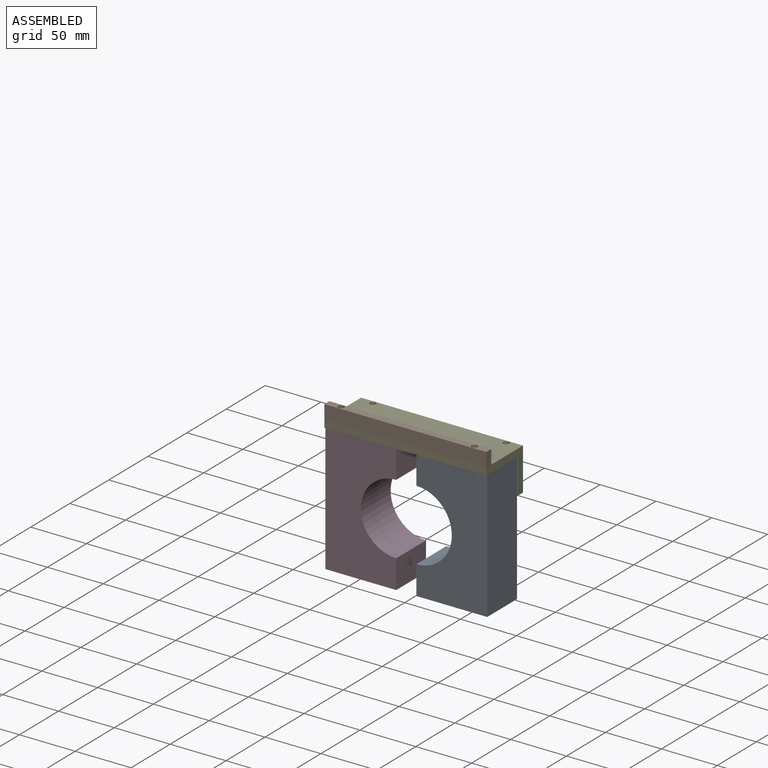
[diagram: assembled view]
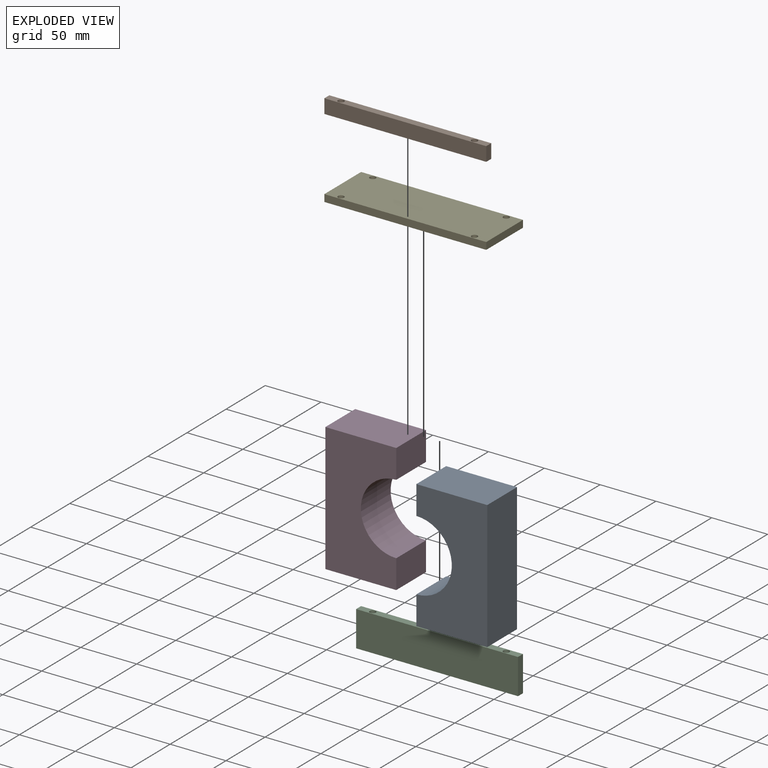
[diagram: exploded view]
GUIDED TOUR — MATED ASSEMBLY (Onshape document 06776807b991c70d6a0b1777, AutoMate assembly 06776807b991c70d6a0b1777_375a27e0dccaaed1980255c1_b34d99c59157cb298fc82749_default)

This assembly has 5 components, labeled P0..P4 below (a component is one placed occurrence of a part; the same part can appear more than once), held together by 6 mates. A mate is a constraint between two components; its type names the relative motion it leaves free:
  CYLINDRICAL — leaves both rotation about and translation along the listed axis free,
  PLANAR — leaves sliding in the plane through the listed point (normal = the listed direction) and rotation about that normal free.
Axis/direction vectors are unit vectors and 'through' points are millimeter coordinates, both in the assembly's world frame.

MATES
  1. CYLINDRICAL "Cylindrical 2": P1 <-> P4, axis (0.000, 0.000, -1.000) through (-117.22, -28.21, -141.79) mm
  2. PLANAR "Planar 2": P4 <-> P0, direction (0.000, 0.000, -1.000) through (-57.42, -7.89, -148.14) mm
  3. CYLINDRICAL "Cylindrical 1": P4 <-> P2, axis (0.000, 0.000, 1.000) through (2.38, 12.43, -141.79) mm
  4. PLANAR "Planar 3": P3 <-> P4, direction (-1.000, 0.000, 0.000) through (-129.92, -11.04, -148.14) mm
  5. PLANAR "Planar 1": P2 <-> P4, direction (0.000, 0.000, 1.000) through (-57.42, 12.43, -148.14) mm
  6. CYLINDRICAL "Cylindrical 3": P4 <-> P1, axis (0.000, 0.000, 1.000) through (-117.22, -28.21, -141.79) mm

ASSEMBLY ORDER
  1. P3 — the base component [order verified]
  2. P0 [order verified]
  3. P2 [order verified]
  4. P4 [order verified]
  5. P1 [order verified]
Order-tag legend:
  [order verified] — this step's position reverses a verified removal order: the component was checked to insert without passing through the ones already placed.

Of the 5 components, 3 carry the full construction recipe — the FeatureScript program that regenerates the part's solid from scratch; the rest are supplied as boundary geometry only.
Each toured component is shown spotlighted twice — in the assembled view, then in the exploded view, where a leader line traces a displaced component back to its assembled socket (saturated green if recipe-attached, orange if geometry-only; every other component desaturated gray) — followed by its recipe or geometry summary and the mates that hold it.
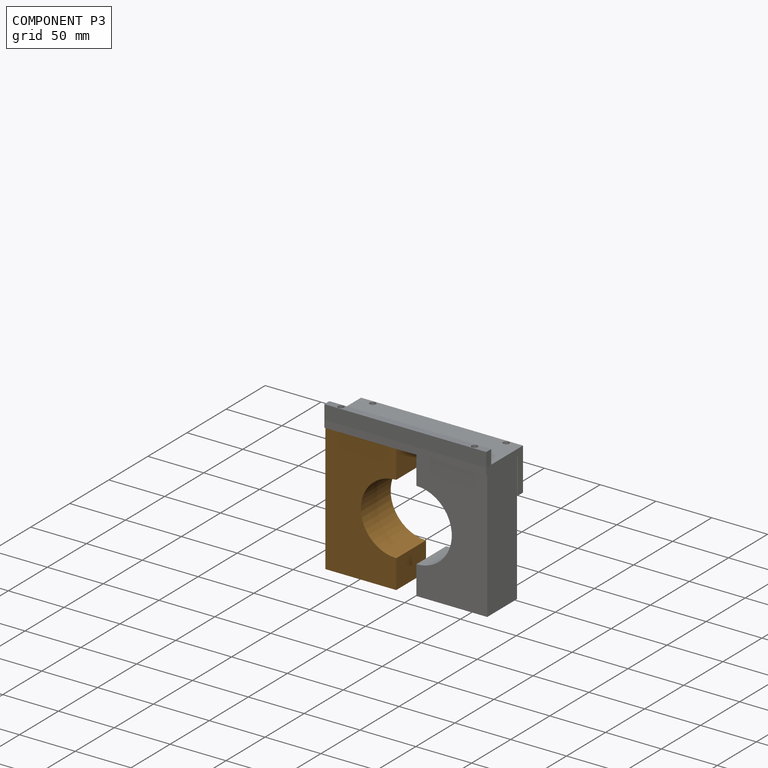
[diagram: component P3 — assembled]
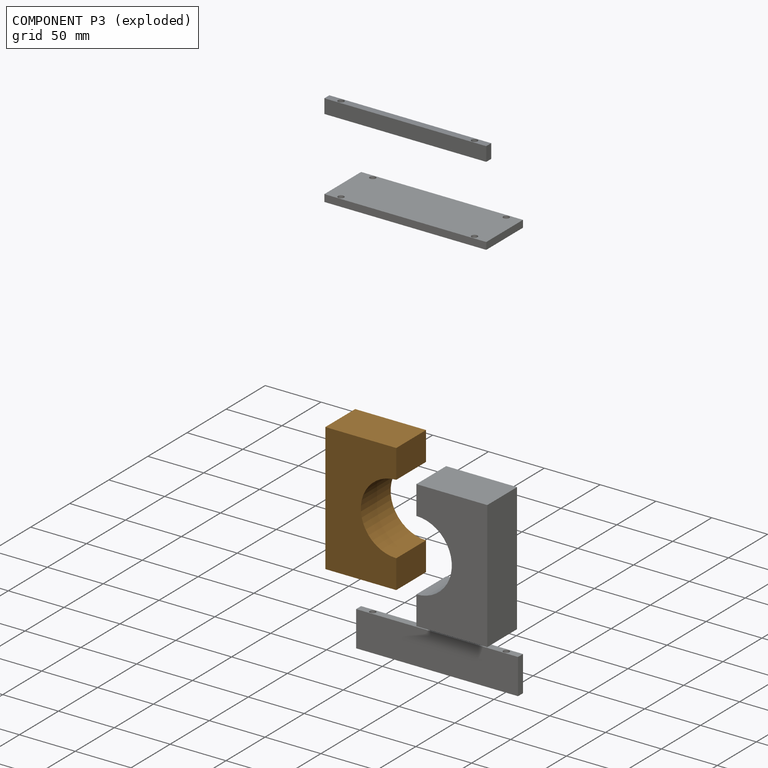
[diagram: component P3 — exploded]
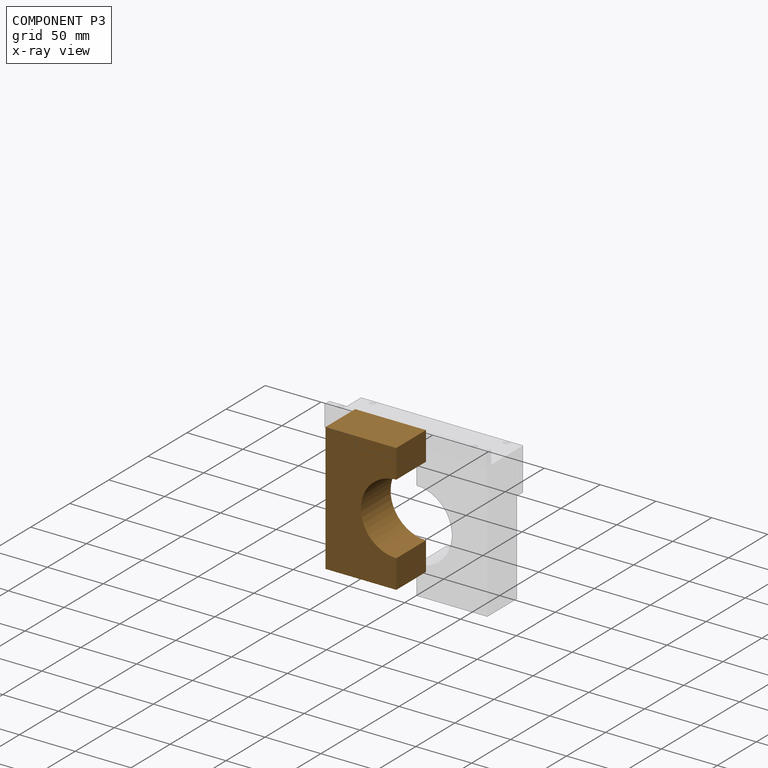
[diagram: component P3 — x-ray view]
COMPONENT P3 — geometry summary (no construction recipe available for this part):
  bounding box: 115.0 x 63.5 x 38.1 mm
  B-rep topology: 1 solid, 8 faces, 36 edges
  volume: 217895 mm^3 (78% of its bounding box)
  symmetry: 2-fold rotationally symmetric about the x axis; mirror-symmetric across its y mid-plane, z mid-plane
Held by: PLANAR mate "Planar 3" to P4.
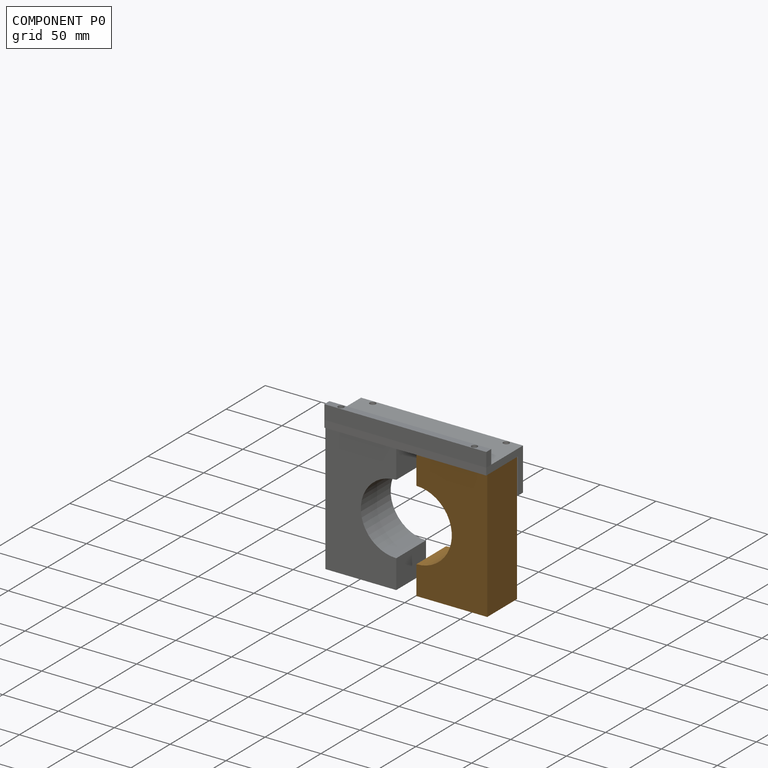
[diagram: component P0 — assembled]
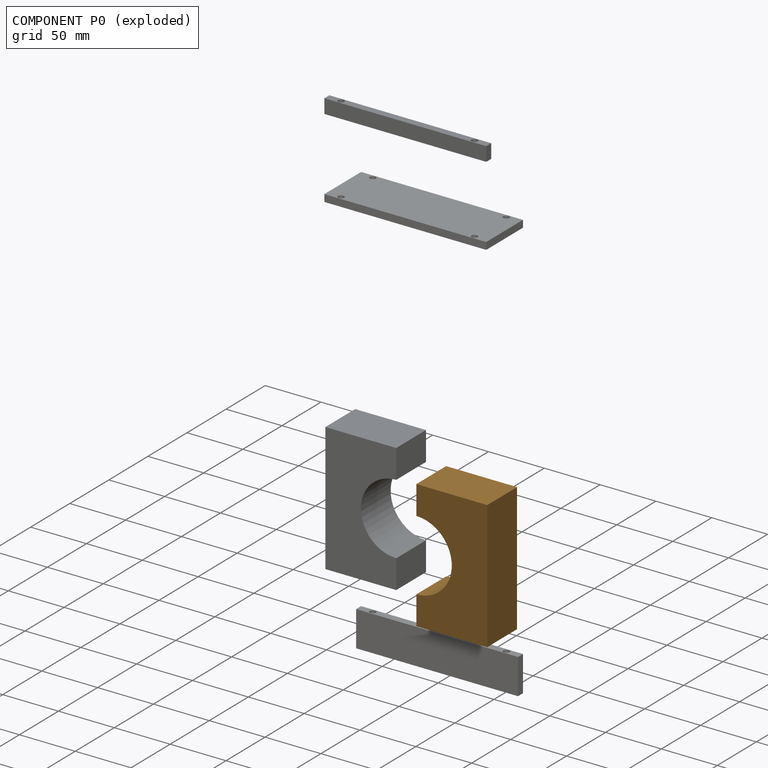
[diagram: component P0 — exploded]
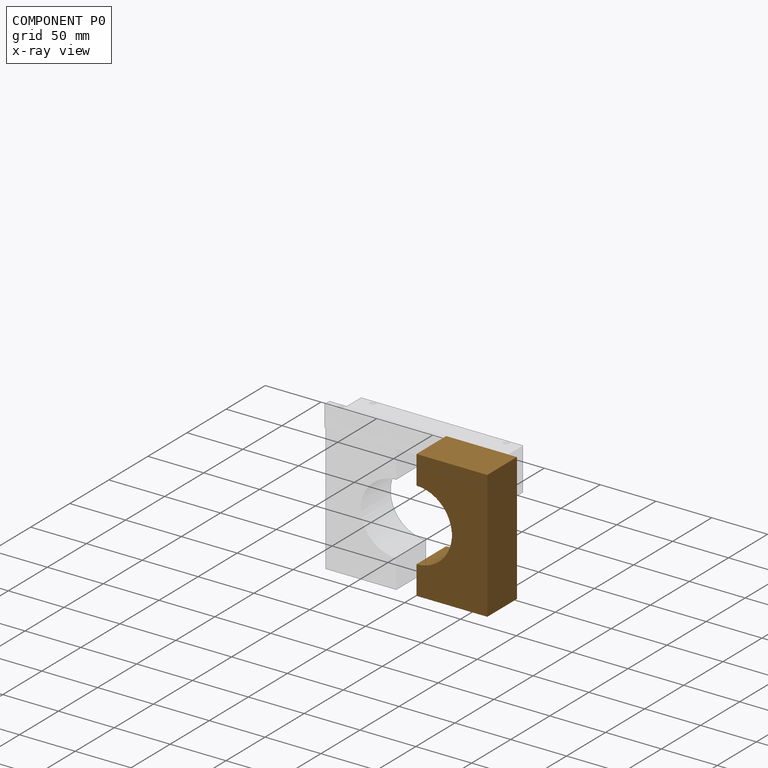
[diagram: component P0 — x-ray view]
COMPONENT P0 — geometry summary (no construction recipe available for this part):
  bounding box: 115.0 x 63.5 x 38.1 mm
  B-rep topology: 1 solid, 8 faces, 36 edges
  volume: 217895 mm^3 (78% of its bounding box)
  symmetry: 2-fold rotationally symmetric about the x axis; mirror-symmetric across its y mid-plane, z mid-plane
Held by: PLANAR mate "Planar 2" to P4.
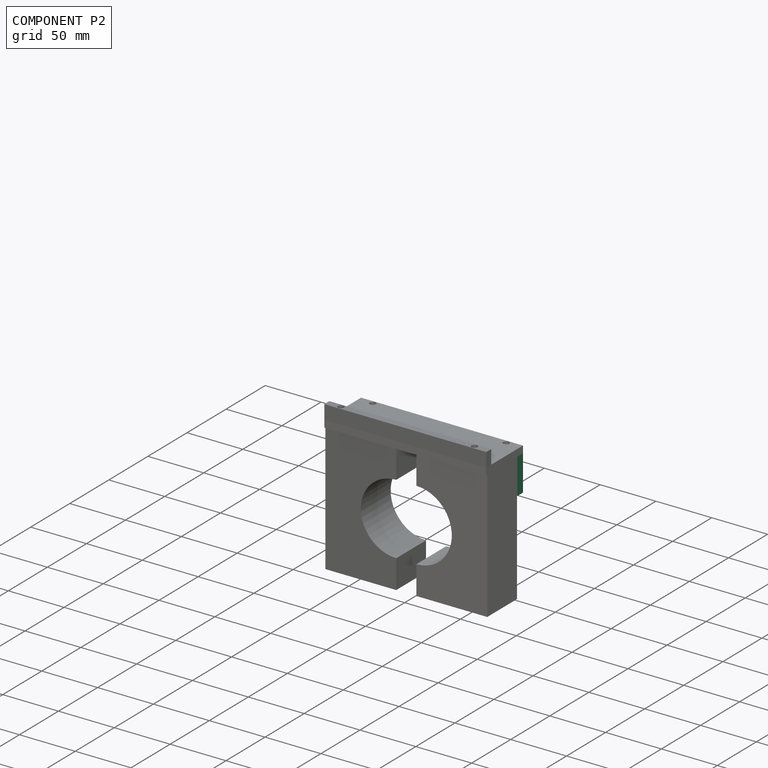
[diagram: component P2 — assembled]
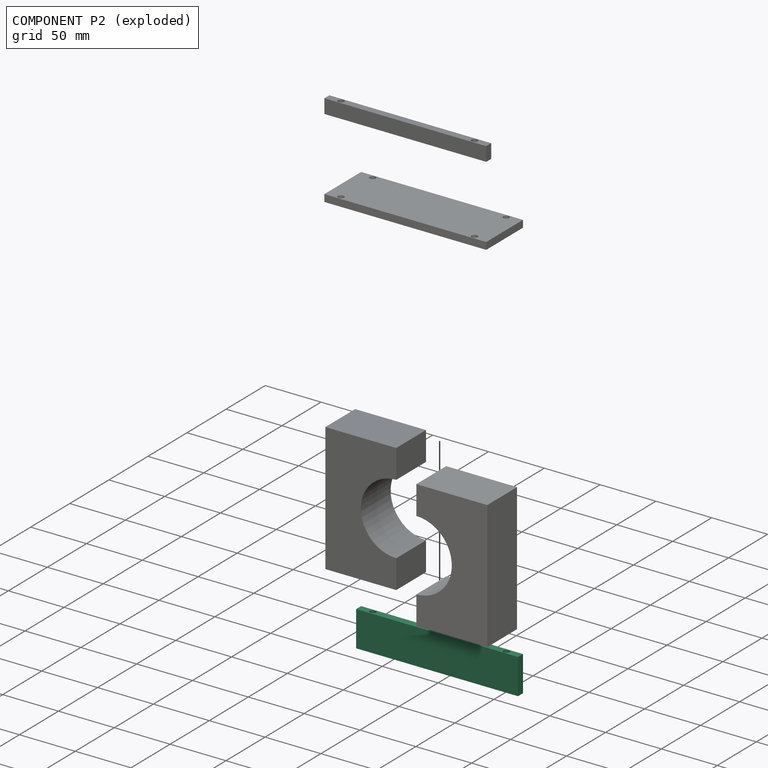
[diagram: component P2 — exploded]
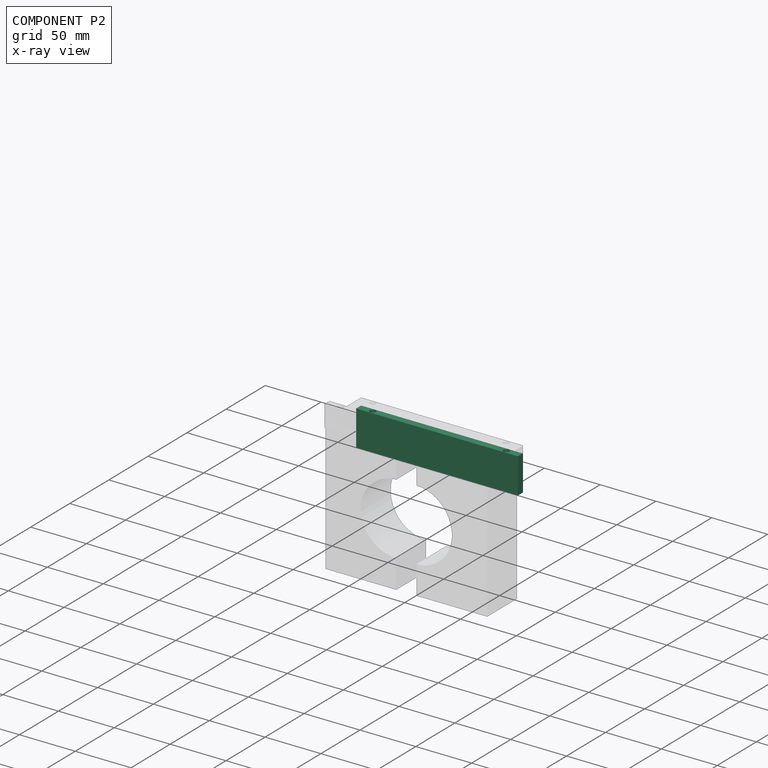
[diagram: component P2 — x-ray view]
COMPONENT P2 — recipe-attached (CADFS 00235846, mesh-verified: the recipe's output STEP matches this component's geometry to below the mesh-comparison resolution (tessellation chordal tolerance ~0.223 mm)).
Held by: CYLINDRICAL mate "Cylindrical 1" to P4; PLANAR mate "Planar 1" to P4.
Construction recipe (FeatureScript — the CAD program that rebuilds this solid; sketch coordinates are in the units given by the * unit suffixes, e.g. mm):

FeatureScript 1511;
import(path : "onshape/std/geometry.fs", version : "1511.0");
import(path : "onshape/std/common.fs", version : "1511.0");
const mm = millimeter;
const VERTEX = EntityType.VERTEX;
const EDGE = EntityType.EDGE;
const FACE = EntityType.FACE;
const BODY = EntityType.BODY;
function v(x, y){return vector(x, y);}
function OD(order){return orderDisambiguation(order);}
function OSD(set){return originalSetDisambiguation(set);}
function TD(topology){return topologyDisambiguation(topology);}
function TDD(query){return trueDependencyDisambiguation(query);}
function sQuery(a, b, c) {return sketchEntityQuery(a, b, c);}

annotation { "Feature Type Name" : "Feature", "Feature Type Description" : "" }
export const myFeature = defineFeature(function(context is Context, id is Id, definition is map)
    precondition{}
    {
        {
            var Q0;
            Q0=qCreatedBy(makeId("Front.planeOp"),FACE);
            var sketch = newSketch(context, id + "F0", { "sketchPlane" : qUnion([Q0])});
            skLineSegment(sketch, "E0.bottom", {"start": v(0, 0) * mm, "end": v(145, 0) * mm});
            skLineSegment(sketch, "E0.top", {"start": v(0, 31.75) * mm, "end": v(145, 31.75) * mm});
            skLineSegment(sketch, "E0.left", {"start": v(0, 0) * mm, "end": v(0, 31.75) * mm});
            skLineSegment(sketch, "E0.right", {"start": v(145, 0) * mm, "end": v(145, 31.75) * mm});
            skSolve(sketch);
        }
        {
            var Q0;
            Q0=makeQuery(id+"F0.imprint","IMPRINT",FACE,{"disambiguationData":[TD([[makeQuery(id+"F0.imprint","IMPRINT",EDGE,{"derivedFrom":sQuery(id+"F0.wireOp",EDGE,"E0.bottom")}),1.0]])]});
            extrude(context, id + "F1", {"entities" : qUnion([Q0]), "depth" : 6.35 * mm});
        }
        {
            var Q0;
            Q0=makeQuery(id+"F1.opExtrude","SWEPT_FACE",FACE,{"disambiguationData":[OSD([sQuery(id+"F0.wireOp",EDGE,"E0.top")])]});
            var sketch = newSketch(context, id + "F2", { "sketchPlane" : qUnion([Q0])});
            skPoint(sketch, "E1", {"position": v(12.7, -3.18) * mm});
            skPoint(sketch, "E2", {"position": v(132.3, -3.17) * mm});
            skSolve(sketch);
        }
        {
            var Q0;
            Q0=sQuery(id+"F2.wireOp",VERTEX,"E1");
            var Q1;
            Q1=sQuery(id+"F2.wireOp",VERTEX,"E2");
            var Q2;
            Q2=makeQuery(id+"F1.opExtrude","SWEPT_BODY",BODY,{"disambiguationData":[OSD([sQuery(id+"F0.wireOp",EDGE,"E0.bottom"),sQuery(id+"F0.wireOp",EDGE,"E0.top"),sQuery(id+"F0.wireOp",EDGE,"E0.left"),sQuery(id+"F0.wireOp",EDGE,"E0.right")])]});
            hole(context, id + "F3", {"style" : HoleStyle.SIMPLE, "endStyle" : HoleEndStyle.BLIND, "holeDiameter" : 5.33 * mm, "holeDepth" : 12.7 * mm, "locations" : qUnion([Q0, Q1]), "scope" : qUnion([Q2])});
        }
    });
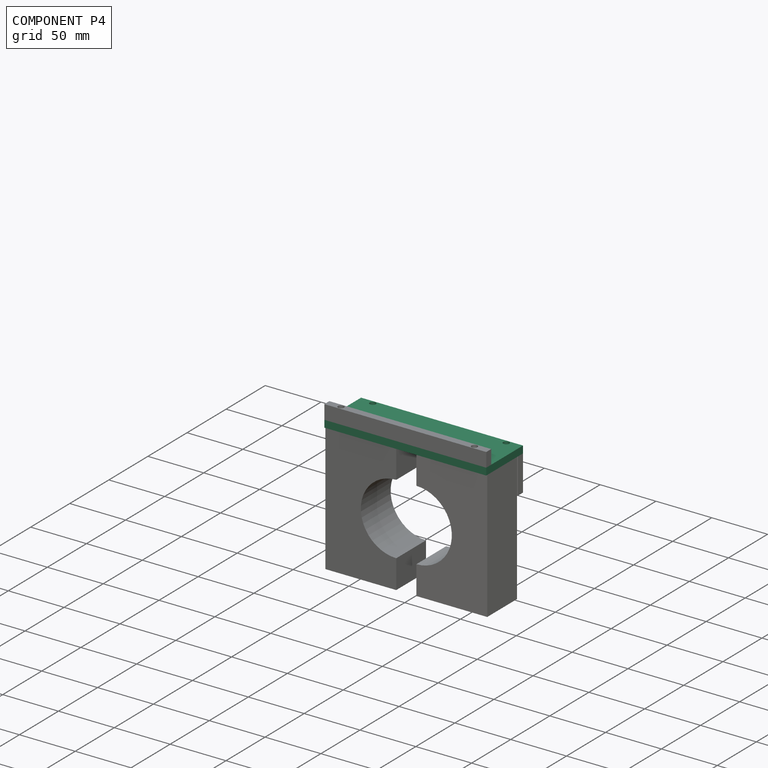
[diagram: component P4 — assembled]
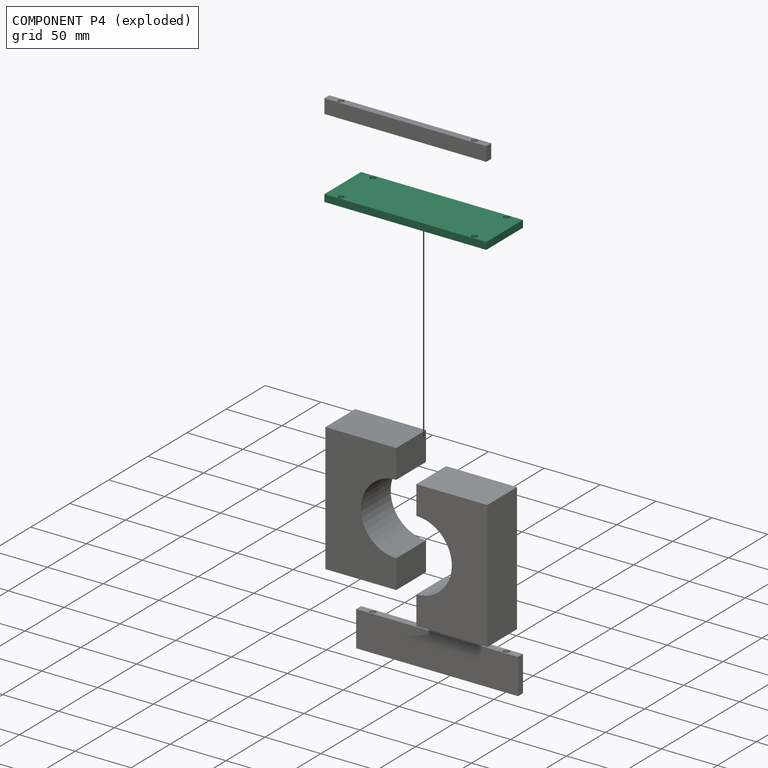
[diagram: component P4 — exploded]
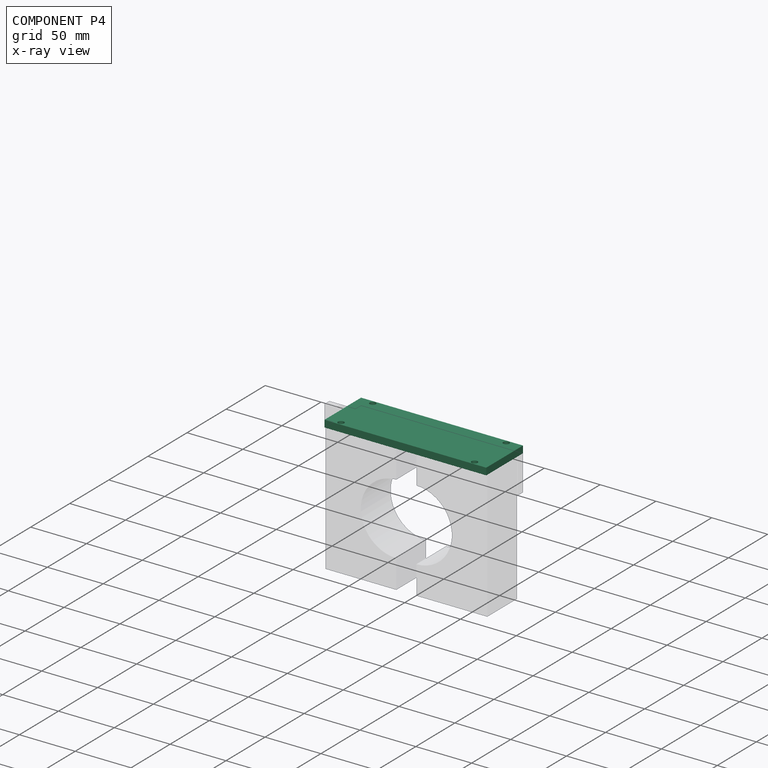
[diagram: component P4 — x-ray view]
COMPONENT P4 — recipe-attached (CADFS 00235847, mesh-verified: the recipe's output STEP matches this component's geometry to below the mesh-comparison resolution (tessellation chordal tolerance ~0.229 mm)).
Held by: CYLINDRICAL mate "Cylindrical 2" to P1; PLANAR mate "Planar 2" to P0; CYLINDRICAL mate "Cylindrical 1" to P2; PLANAR mate "Planar 3" to P3; PLANAR mate "Planar 1" to P2; CYLINDRICAL mate "Cylindrical 3" to P1.
Construction recipe (FeatureScript — the CAD program that rebuilds this solid; sketch coordinates are in the units given by the * unit suffixes, e.g. mm):

FeatureScript 1511;
import(path : "onshape/std/geometry.fs", version : "1511.0");
import(path : "onshape/std/common.fs", version : "1511.0");
const mm = millimeter;
const VERTEX = EntityType.VERTEX;
const EDGE = EntityType.EDGE;
const FACE = EntityType.FACE;
const BODY = EntityType.BODY;
function v(x, y){return vector(x, y);}
function OD(order){return orderDisambiguation(order);}
function OSD(set){return originalSetDisambiguation(set);}
function TD(topology){return topologyDisambiguation(topology);}
function TDD(query){return trueDependencyDisambiguation(query);}
function sQuery(a, b, c) {return sketchEntityQuery(a, b, c);}

annotation { "Feature Type Name" : "Feature", "Feature Type Description" : "" }
export const myFeature = defineFeature(function(context is Context, id is Id, definition is map)
    precondition{}
    {
        {
            var Q0;
            Q0=qCreatedBy(makeId("Front.planeOp"),FACE);
            var sketch = newSketch(context, id + "F0", { "sketchPlane" : qUnion([Q0])});
            skLineSegment(sketch, "E0.bottom", {"start": v(0, 0) * mm, "end": v(145, 0) * mm});
            skLineSegment(sketch, "E0.top", {"start": v(0, 47) * mm, "end": v(145, 47) * mm});
            skLineSegment(sketch, "E0.left", {"start": v(0, 0) * mm, "end": v(0, 47) * mm});
            skLineSegment(sketch, "E0.right", {"start": v(145, 0) * mm, "end": v(145, 47) * mm});
            skSolve(sketch);
        }
        {
            var Q0;
            Q0=makeQuery(id+"F0.imprint","IMPRINT",FACE,{"disambiguationData":[TD([[makeQuery(id+"F0.imprint","IMPRINT",EDGE,{"derivedFrom":sQuery(id+"F0.wireOp",EDGE,"E0.bottom")}),1.0]])]});
            extrude(context, id + "F1", {"entities" : qUnion([Q0]), "depth" : 6.35 * mm});
        }
        {
            var Q0;
            Q0=makeQuery(id+"F1.opExtrude","CAP_FACE",FACE,{"disambiguationData":[OSD([sQuery(id+"F0.wireOp",EDGE,"E0.bottom"),sQuery(id+"F0.wireOp",EDGE,"E0.top"),sQuery(id+"F0.wireOp",EDGE,"E0.left"),sQuery(id+"F0.wireOp",EDGE,"E0.right")])],"isStart":false});
            var sketch = newSketch(context, id + "F2", { "sketchPlane" : qUnion([Q0])});
            skPoint(sketch, "E1", {"position": v(12.7, 43.82) * mm});
            skPoint(sketch, "E2", {"position": v(132.3, 43.82) * mm});
            skPoint(sketch, "E3", {"position": v(12.7, 3.18) * mm});
            skPoint(sketch, "E4", {"position": v(132.3, 3.18) * mm});
            skSolve(sketch);
        }
        {
            var Q0;
            Q0=sQuery(id+"F2.wireOp",VERTEX,"E1");
            var Q1;
            Q1=sQuery(id+"F2.wireOp",VERTEX,"E2");
            var Q2;
            Q2=sQuery(id+"F2.wireOp",VERTEX,"E3");
            var Q3;
            Q3=sQuery(id+"F2.wireOp",VERTEX,"E4");
            var Q4;
            Q4=makeQuery(id+"F1.opExtrude","SWEPT_BODY",BODY,{"disambiguationData":[OSD([sQuery(id+"F0.wireOp",EDGE,"E0.bottom"),sQuery(id+"F0.wireOp",EDGE,"E0.top"),sQuery(id+"F0.wireOp",EDGE,"E0.left"),sQuery(id+"F0.wireOp",EDGE,"E0.right")])]});
            hole(context, id + "F3", {"style" : HoleStyle.SIMPLE, "endStyle" : HoleEndStyle.BLIND, "holeDiameter" : 5.33 * mm, "holeDepth" : 76.2 * mm, "locations" : qUnion([Q0, Q1, Q2, Q3]), "scope" : qUnion([Q4])});
        }
    });
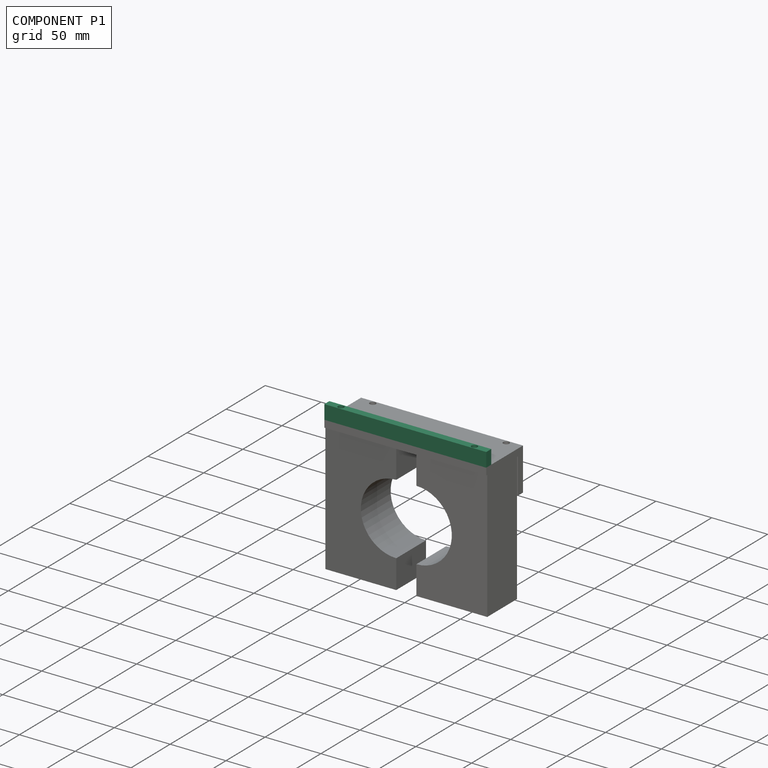
[diagram: component P1 — assembled]
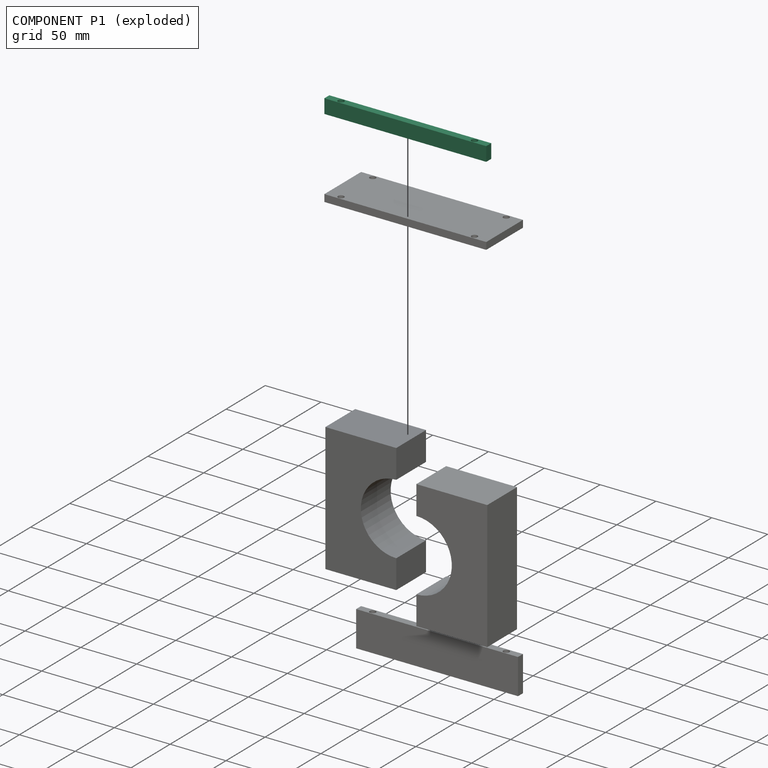
[diagram: component P1 — exploded]
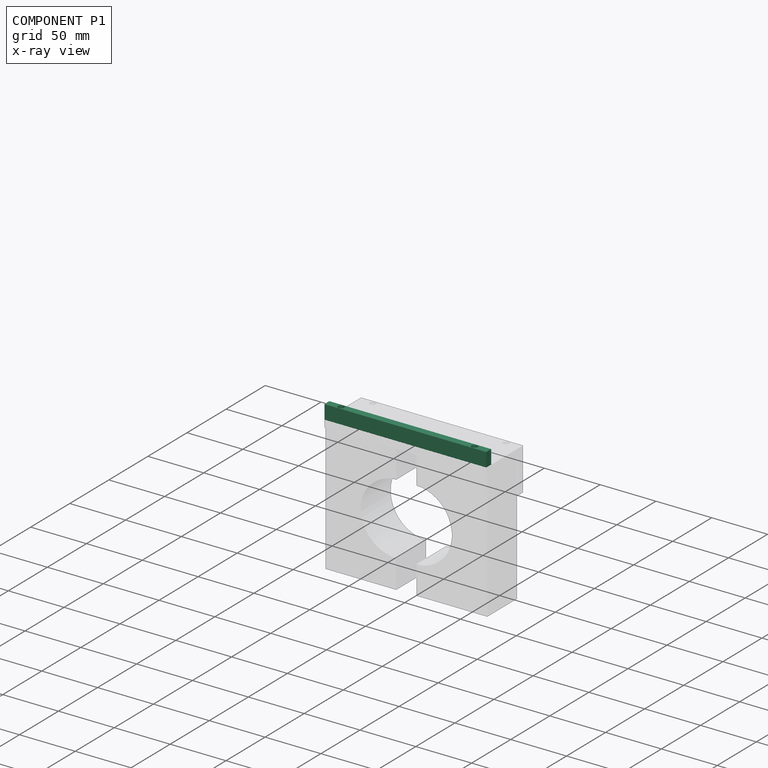
[diagram: component P1 — x-ray view]
COMPONENT P1 — recipe-attached (CADFS 00235848, mesh-verified: the recipe's output STEP matches this component's geometry to below the mesh-comparison resolution (tessellation chordal tolerance ~0.219 mm)).
Held by: CYLINDRICAL mate "Cylindrical 2" to P4; CYLINDRICAL mate "Cylindrical 3" to P4.
Construction recipe (FeatureScript — the CAD program that rebuilds this solid; sketch coordinates are in the units given by the * unit suffixes, e.g. mm):

FeatureScript 1511;
import(path : "onshape/std/geometry.fs", version : "1511.0");
import(path : "onshape/std/common.fs", version : "1511.0");
const mm = millimeter;
const VERTEX = EntityType.VERTEX;
const EDGE = EntityType.EDGE;
const FACE = EntityType.FACE;
const BODY = EntityType.BODY;
function v(x, y){return vector(x, y);}
function OD(order){return orderDisambiguation(order);}
function OSD(set){return originalSetDisambiguation(set);}
function TD(topology){return topologyDisambiguation(topology);}
function TDD(query){return trueDependencyDisambiguation(query);}
function sQuery(a, b, c) {return sketchEntityQuery(a, b, c);}

annotation { "Feature Type Name" : "Feature", "Feature Type Description" : "" }
export const myFeature = defineFeature(function(context is Context, id is Id, definition is map)
    precondition{}
    {
        {
            var Q0;
            Q0=qCreatedBy(makeId("Front.planeOp"),FACE);
            var sketch = newSketch(context, id + "F0", { "sketchPlane" : qUnion([Q0])});
            skLineSegment(sketch, "E0.bottom", {"start": v(0, 0) * mm, "end": v(145, 0) * mm});
            skLineSegment(sketch, "E0.top", {"start": v(0, 12.7) * mm, "end": v(145, 12.7) * mm});
            skLineSegment(sketch, "E0.left", {"start": v(0, 0) * mm, "end": v(0, 12.7) * mm});
            skLineSegment(sketch, "E0.right", {"start": v(145, 0) * mm, "end": v(145, 12.7) * mm});
            skSolve(sketch);
        }
        {
            var Q0;
            Q0=makeQuery(id+"F0.imprint","IMPRINT",FACE,{"disambiguationData":[TD([[makeQuery(id+"F0.imprint","IMPRINT",EDGE,{"derivedFrom":sQuery(id+"F0.wireOp",EDGE,"E0.bottom")}),1.0]])]});
            extrude(context, id + "F1", {"entities" : qUnion([Q0]), "depth" : 6.35 * mm});
        }
        {
            var Q0;
            Q0=makeQuery(id+"F1.opExtrude","SWEPT_FACE",FACE,{"disambiguationData":[OSD([sQuery(id+"F0.wireOp",EDGE,"E0.top")])]});
            var sketch = newSketch(context, id + "F2", { "sketchPlane" : qUnion([Q0])});
            skPoint(sketch, "E1", {"position": v(12.7, -3.18) * mm});
            skPoint(sketch, "E2", {"position": v(173.06, -3.17) * mm});
            skPoint(sketch, "E3", {"position": v(132.3, -3.17) * mm});
            skSolve(sketch);
        }
        {
            var Q0;
            Q0=sQuery(id+"F2.wireOp",VERTEX,"E1");
            var Q1;
            Q1=sQuery(id+"F2.wireOp",VERTEX,"E3");
            var Q2;
            Q2=makeQuery(id+"F1.opExtrude","SWEPT_BODY",BODY,{"disambiguationData":[OSD([sQuery(id+"F0.wireOp",EDGE,"E0.bottom"),sQuery(id+"F0.wireOp",EDGE,"E0.top"),sQuery(id+"F0.wireOp",EDGE,"E0.left"),sQuery(id+"F0.wireOp",EDGE,"E0.right")])]});
            hole(context, id + "F3", {"style" : HoleStyle.SIMPLE, "endStyle" : HoleEndStyle.BLIND, "holeDiameter" : 5.33 * mm, "holeDepth" : 12.7 * mm, "locations" : qUnion([Q0, Q1]), "scope" : qUnion([Q2])});
        }
    });
PROVENANCE & LICENSES
Assembly (occurrences, transforms, mates, per-part STEP geometry): AutoMate dataset, Zenodo record 7776208, CC0.
Construction recipes: CADFS (HuggingFace VladPyatov/CADFS, CC-BY-4.0, layered over the ABC dataset), FeatureScript reconstruction programs keyed by ABC model id.
Join: ABC meta listings map ABC model id -> Onshape documentId; within a shared document, parts are matched by geometric signature (bounding-box dims + volume at 0.1% relative tolerance, exact B-rep face/solid counts).
Verification: 3 of this assembly's 5 components carry a recipe attachment, and every attachment is mesh-verified: the CADFS STEP and the AutoMate member STEP were compared as meshes in their shared local frame (symmetric sampled-point-to-mesh distance); worst across the 3 attachments: below the mesh-comparison resolution (tessellation chordal tolerance ~0.229 mm) on a 153 mm part.
Renders: orthographic iso camera (az 35 / el 25); the floor grid conveys scale (grid pitch printed in each image; no ruler). In the exploded view each component is displaced by its stored offset vector: the offsets alone carry the explosion direction (mate normal/axis signs are not orientation cues and do not encode it), and separation distances are assigned per mate-chain, not proportionally to assembly-order depth.
